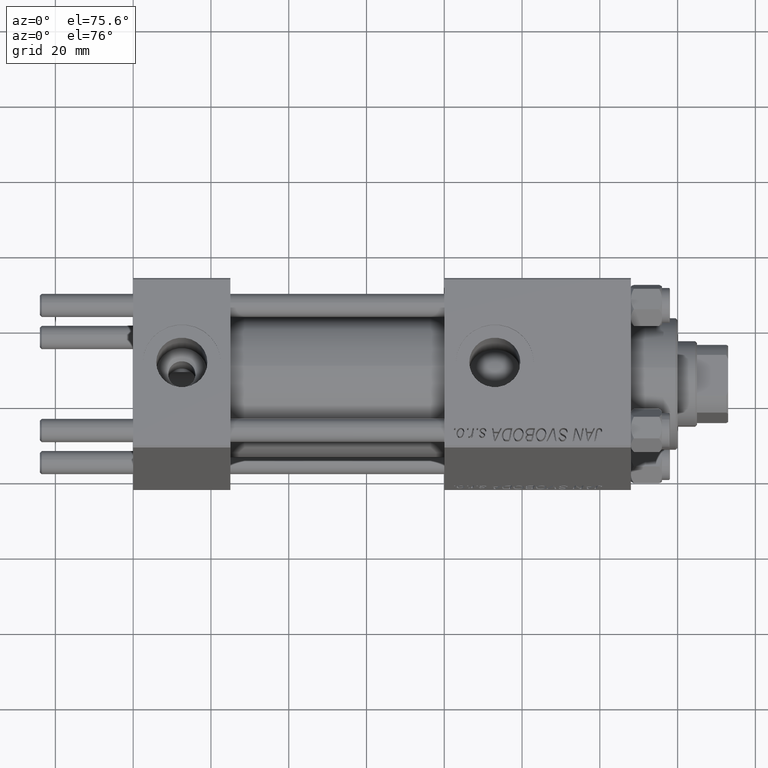
[diagram: clean part render]
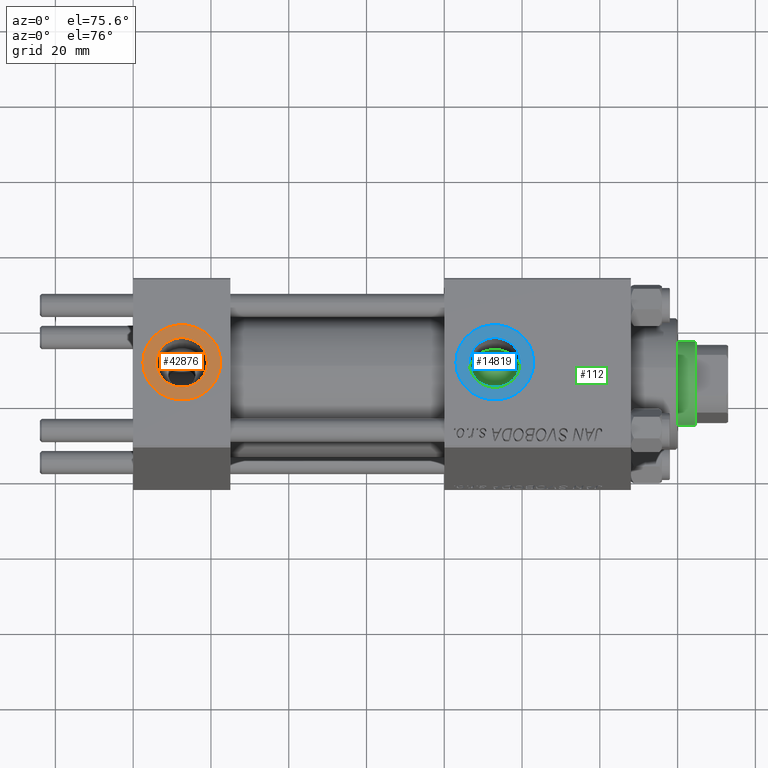
[diagram: same view with three faces highlighted in distinct colors, each labeled with its STEP entity id]
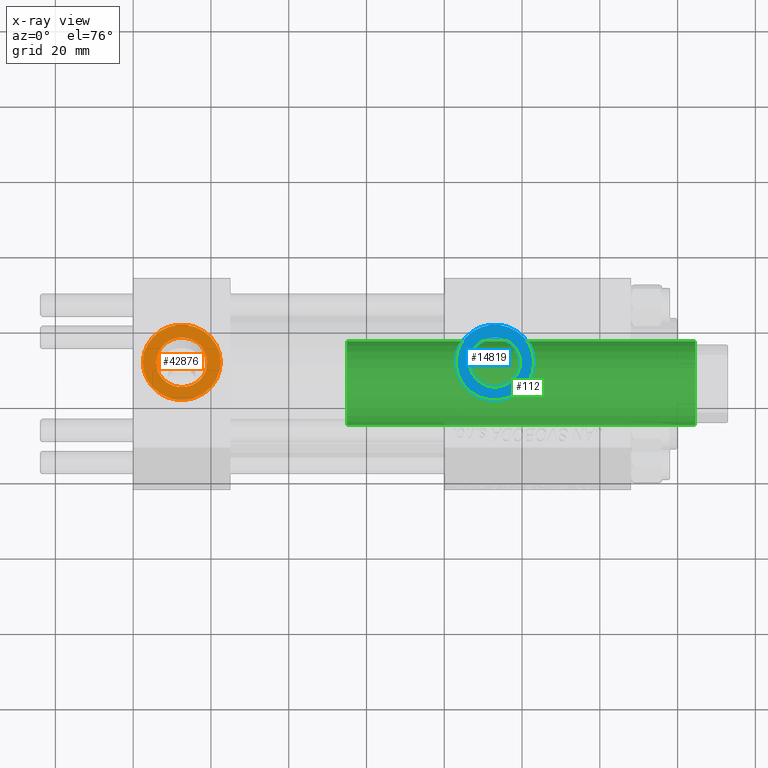
[diagram: x-ray of the same camera — body ghosted, the three highlighted faces saturated]
A machine part, auxiliary view with three faces highlighted in distinct colors.
The next image is the same camera in x-ray (body ghosted, the three faces saturated) — at least one of them is partly hidden behind the body in this view.
Their STEP definitions:

[orange] entity #42876 — the highlighted planar face has unit normal (0, 0, 1).
#6 = CARTESIAN_POINT ( 'NONE',  ( 12.50000000000000000, -1.734723475976807094E-15, 22.30000000000000071 ) ) ;
#756 = AXIS2_PLACEMENT_3D ( 'NONE', #31468, #47159, #1107 ) ;
#945 = CARTESIAN_POINT ( 'NONE',  ( 12.50000000000000000, -1.734723475976807094E-15, 22.30000000000000071 ) ) ;
#1107 = DIRECTION ( 'NONE',  ( 1.000000000000000000, 0.000000000000000000, 0.000000000000000000 ) ) ;
#5902 = AXIS2_PLACEMENT_3D ( 'NONE', #6, #31606, #35129 ) ;
#10517 = DIRECTION ( 'NONE',  ( 0.000000000000000000, 0.000000000000000000, 1.000000000000000000 ) ) ;
#10813 = CARTESIAN_POINT ( 'NONE',  ( 19.07999999999999829, -1.734723475976807094E-15, 22.30000000000000071 ) ) ;
#11396 = AXIS2_PLACEMENT_3D ( 'NONE', #28390, #19555, #34970 ) ;
#12382 = FACE_BOUND ( 'NONE', #37731, .T. ) ;
#13453 = AXIS2_PLACEMENT_3D ( 'NONE', #29994, #10517, #45920 ) ;
#14118 = EDGE_CURVE ( 'NONE', #38729, #44265, #41075, .T. ) ;
#17348 = CARTESIAN_POINT ( 'NONE',  ( 5.920000000000002593, -9.289058821378490386E-16, 22.30000000000000071 ) ) ;
#19555 = DIRECTION ( 'NONE',  ( 0.000000000000000000, 0.000000000000000000, 1.000000000000000000 ) ) ;
#20404 = DIRECTION ( 'NONE',  ( 0.000000000000000000, 0.000000000000000000, 1.000000000000000000 ) ) ;
#22559 = CIRCLE ( 'NONE', #756, 6.579999999999999183 ) ;
#22804 = CARTESIAN_POINT ( 'NONE',  ( 2.500000000000003997, -5.100766768294543310E-16, 22.30000000000000071 ) ) ;
#23763 = FACE_OUTER_BOUND ( 'NONE', #33677, .T. ) ;
#24011 = EDGE_CURVE ( 'NONE', #48334, #47076, #24755, .T. ) ;
#24755 = CIRCLE ( 'NONE', #13453, 6.579999999999999183 ) ;
#25915 = ORIENTED_EDGE ( 'NONE', *, *, #24011, .F. ) ;
#28336 = CARTESIAN_POINT ( 'NONE',  ( 22.50000000000000000, -1.734723475976807094E-15, 22.30000000000000071 ) ) ;
#28390 = CARTESIAN_POINT ( 'NONE',  ( 12.50000000000000000, -1.734723475976807094E-15, 22.30000000000000071 ) ) ;
#29994 = CARTESIAN_POINT ( 'NONE',  ( 12.50000000000000000, -1.734723475976807094E-15, 22.30000000000000071 ) ) ;
#30581 = EDGE_CURVE ( 'NONE', #47076, #48334, #22559, .T. ) ;
#31468 = CARTESIAN_POINT ( 'NONE',  ( 12.50000000000000000, -1.734723475976807094E-15, 22.30000000000000071 ) ) ;
#31606 = DIRECTION ( 'NONE',  ( 0.000000000000000000, 0.000000000000000000, 1.000000000000000000 ) ) ;
#33677 = EDGE_LOOP ( 'NONE', ( #48581, #39134 ) ) ;
#34970 = DIRECTION ( 'NONE',  ( 1.000000000000000000, 0.000000000000000000, 0.000000000000000000 ) ) ;
#35129 = DIRECTION ( 'NONE',  ( 1.000000000000000000, 0.000000000000000000, -0.000000000000000000 ) ) ;
#37018 = AXIS2_PLACEMENT_3D ( 'NONE', #945, #20404, #43450 ) ;
#37731 = EDGE_LOOP ( 'NONE', ( #49269, #25915 ) ) ;
#38269 = EDGE_CURVE ( 'NONE', #44265, #38729, #40456, .T. ) ;
#38729 = VERTEX_POINT ( 'NONE', #28336 ) ;
#39134 = ORIENTED_EDGE ( 'NONE', *, *, #38269, .T. ) ;
#40456 = CIRCLE ( 'NONE', #11396, 9.999999999999998224 ) ;
#41075 = CIRCLE ( 'NONE', #37018, 9.999999999999998224 ) ;
#42756 = PLANE ( 'NONE',  #5902 ) ;
#42876 = ADVANCED_FACE ( 'NONE', ( #12382, #23763 ), #42756, .T. ) ;
#43450 = DIRECTION ( 'NONE',  ( 1.000000000000000000, 0.000000000000000000, 0.000000000000000000 ) ) ;
#44265 = VERTEX_POINT ( 'NONE', #22804 ) ;
#45920 = DIRECTION ( 'NONE',  ( 1.000000000000000000, 0.000000000000000000, 0.000000000000000000 ) ) ;
#47076 = VERTEX_POINT ( 'NONE', #10813 ) ;
#47159 = DIRECTION ( 'NONE',  ( 0.000000000000000000, 0.000000000000000000, 1.000000000000000000 ) ) ;
#48334 = VERTEX_POINT ( 'NONE', #17348 ) ;
#48581 = ORIENTED_EDGE ( 'NONE', *, *, #14118, .T. ) ;
#49269 = ORIENTED_EDGE ( 'NONE', *, *, #30581, .F. ) ;

[blue] entity #14819 — the highlighted planar face has unit normal (0, 0, 1).
#2555 = DIRECTION ( 'NONE',  ( -0.000000000000000000, -0.000000000000000000, -1.000000000000000000 ) ) ;
#3221 = DIRECTION ( 'NONE',  ( 1.000000000000000000, 0.000000000000000000, 0.000000000000000000 ) ) ;
#3305 = DIRECTION ( 'NONE',  ( 1.000000000000000000, 0.000000000000000000, 0.000000000000000000 ) ) ;
#5399 = AXIS2_PLACEMENT_3D ( 'NONE', #46190, #10537, #11528 ) ;
#7014 = DIRECTION ( 'NONE',  ( -0.000000000000000000, -0.000000000000000000, -1.000000000000000000 ) ) ;
#7340 = CARTESIAN_POINT ( 'NONE',  ( 93.00000000000000000, -5.204170427930420494E-15, 22.29999999999999716 ) ) ;
#8614 = VERTEX_POINT ( 'NONE', #11581 ) ;
#9119 = ORIENTED_EDGE ( 'NONE', *, *, #35247, .T. ) ;
#9754 = DIRECTION ( 'NONE',  ( 1.000000000000000000, 0.000000000000000000, 0.000000000000000000 ) ) ;
#9797 = EDGE_CURVE ( 'NONE', #36218, #49011, #34452, .T. ) ;
#10343 = FACE_OUTER_BOUND ( 'NONE', #37041, .T. ) ;
#10537 = DIRECTION ( 'NONE',  ( 0.000000000000000000, 0.000000000000000000, 1.000000000000000000 ) ) ;
#11528 = DIRECTION ( 'NONE',  ( 1.000000000000000000, 0.000000000000000000, 0.000000000000000000 ) ) ;
#11581 = CARTESIAN_POINT ( 'NONE',  ( 86.42000000000000171, -5.204170427930420494E-15, 22.29999999999999716 ) ) ;
#13827 = ORIENTED_EDGE ( 'NONE', *, *, #49977, .T. ) ;
#14819 = ADVANCED_FACE ( 'NONE', ( #21474, #10343 ), #40949, .T. ) ;
#19130 = AXIS2_PLACEMENT_3D ( 'NONE', #37857, #7014, #3221 ) ;
#19721 = AXIS2_PLACEMENT_3D ( 'NONE', #7340, #2555, #3305 ) ;
#19922 = CIRCLE ( 'NONE', #19130, 6.580000000000002736 ) ;
#21474 = FACE_BOUND ( 'NONE', #45878, .T. ) ;
#22396 = CARTESIAN_POINT ( 'NONE',  ( 99.57999999999999829, -4.398352834091461452E-15, 22.29999999999999716 ) ) ;
#23138 = EDGE_CURVE ( 'NONE', #42670, #8614, #19922, .T. ) ;
#24017 = CARTESIAN_POINT ( 'NONE',  ( 82.99999999999998579, -3.979523628783065857E-15, 22.29999999999999716 ) ) ;
#24764 = DIRECTION ( 'NONE',  ( 0.000000000000000000, 0.000000000000000000, 1.000000000000000000 ) ) ;
#25770 = DIRECTION ( 'NONE',  ( 1.000000000000000000, 0.000000000000000000, -0.000000000000000000 ) ) ;
#26595 = AXIS2_PLACEMENT_3D ( 'NONE', #48557, #24764, #25770 ) ;
#26984 = CIRCLE ( 'NONE', #19721, 6.580000000000002736 ) ;
#28258 = AXIS2_PLACEMENT_3D ( 'NONE', #48215, #44428, #9754 ) ;
#34452 = CIRCLE ( 'NONE', #5399, 10.00000000000000888 ) ;
#35247 = EDGE_CURVE ( 'NONE', #49011, #36218, #37130, .T. ) ;
#36218 = VERTEX_POINT ( 'NONE', #39563 ) ;
#37041 = EDGE_LOOP ( 'NONE', ( #44220, #9119 ) ) ;
#37130 = CIRCLE ( 'NONE', #28258, 10.00000000000000888 ) ;
#37857 = CARTESIAN_POINT ( 'NONE',  ( 93.00000000000000000, -5.204170427930420494E-15, 22.29999999999999716 ) ) ;
#39563 = CARTESIAN_POINT ( 'NONE',  ( 103.0000000000000142, -5.204170427930420494E-15, 22.29999999999999716 ) ) ;
#40949 = PLANE ( 'NONE',  #26595 ) ;
#42670 = VERTEX_POINT ( 'NONE', #22396 ) ;
#44220 = ORIENTED_EDGE ( 'NONE', *, *, #9797, .T. ) ;
#44428 = DIRECTION ( 'NONE',  ( 0.000000000000000000, 0.000000000000000000, 1.000000000000000000 ) ) ;
#45878 = EDGE_LOOP ( 'NONE', ( #13827, #48764 ) ) ;
#46190 = CARTESIAN_POINT ( 'NONE',  ( 93.00000000000000000, -5.204170427930420494E-15, 22.29999999999999716 ) ) ;
#48215 = CARTESIAN_POINT ( 'NONE',  ( 93.00000000000000000, -5.204170427930420494E-15, 22.29999999999999716 ) ) ;
#48557 = CARTESIAN_POINT ( 'NONE',  ( 93.00000000000000000, -5.204170427930420494E-15, 22.29999999999999716 ) ) ;
#48764 = ORIENTED_EDGE ( 'NONE', *, *, #23138, .T. ) ;
#49011 = VERTEX_POINT ( 'NONE', #24017 ) ;
#49977 = EDGE_CURVE ( 'NONE', #8614, #42670, #26984, .T. ) ;

[green] entity #112 — the highlighted cylindrical surface (partial cylindrical patch) has radius 11 mm, axis along (-1, 0, 0).
#112 = ADVANCED_FACE ( 'NONE', ( #27763 ), #43205, .T. ) ;
#653 = EDGE_CURVE ( 'NONE', #10863, #18332, #44019, .T. ) ;
#1902 = CARTESIAN_POINT ( 'NONE',  ( -11.00000000000000000, 0.000000000000000000, 120.0000000000000000 ) ) ;
#1983 = AXIS2_PLACEMENT_3D ( 'NONE', #23348, #34964, #18566 ) ;
#2087 = EDGE_CURVE ( 'NONE', #21125, #10863, #39846, .T. ) ;
#3423 = EDGE_LOOP ( 'NONE', ( #17446, #46809, #30882, #28895 ) ) ;
#3509 = DIRECTION ( 'NONE',  ( -1.000000000000000000, 0.000000000000000000, 0.000000000000000000 ) ) ;
#3616 = AXIS2_PLACEMENT_3D ( 'NONE', #22732, #38147, #3509 ) ;
#5037 = DIRECTION ( 'NONE',  ( -0.000000000000000000, -0.000000000000000000, -1.000000000000000000 ) ) ;
#5880 = VERTEX_POINT ( 'NONE', #47664 ) ;
#10863 = VERTEX_POINT ( 'NONE', #42674 ) ;
#16665 = CARTESIAN_POINT ( 'NONE',  ( 11.00000000000000000, 1.347111479062088207E-15, 120.0000000000000000 ) ) ;
#17446 = ORIENTED_EDGE ( 'NONE', *, *, #31276, .F. ) ;
#18332 = VERTEX_POINT ( 'NONE', #39566 ) ;
#18566 = DIRECTION ( 'NONE',  ( 1.000000000000000000, 0.000000000000000000, 0.000000000000000000 ) ) ;
#18803 = CARTESIAN_POINT ( 'NONE',  ( 0.000000000000000000, 0.000000000000000000, 119.5000000000000711 ) ) ;
#21125 = VERTEX_POINT ( 'NONE', #39687 ) ;
#22732 = CARTESIAN_POINT ( 'NONE',  ( 0.000000000000000000, 0.000000000000000000, 120.0000000000000000 ) ) ;
#23348 = CARTESIAN_POINT ( 'NONE',  ( 0.000000000000000000, 0.000000000000000000, 30.00000000000000000 ) ) ;
#26880 = EDGE_CURVE ( 'NONE', #5880, #21125, #29760, .T. ) ;
#27135 = DIRECTION ( 'NONE',  ( 1.000000000000000000, 0.000000000000000000, 0.000000000000000000 ) ) ;
#27763 = FACE_OUTER_BOUND ( 'NONE', #3423, .T. ) ;
#28549 = LINE ( 'NONE', #16665, #34703 ) ;
#28895 = ORIENTED_EDGE ( 'NONE', *, *, #653, .T. ) ;
#29760 = CIRCLE ( 'NONE', #43482, 11.00000000000000000 ) ;
#30186 = DIRECTION ( 'NONE',  ( 0.000000000000000000, 0.000000000000000000, -1.000000000000000000 ) ) ;
#30882 = ORIENTED_EDGE ( 'NONE', *, *, #2087, .T. ) ;
#31276 = EDGE_CURVE ( 'NONE', #5880, #18332, #28549, .T. ) ;
#32740 = DIRECTION ( 'NONE',  ( -0.000000000000000000, -0.000000000000000000, -1.000000000000000000 ) ) ;
#34703 = VECTOR ( 'NONE', #5037, 1000.000000000000000 ) ;
#34964 = DIRECTION ( 'NONE',  ( 0.000000000000000000, 0.000000000000000000, 1.000000000000000000 ) ) ;
#35179 = VECTOR ( 'NONE', #32740, 1000.000000000000000 ) ;
#38147 = DIRECTION ( 'NONE',  ( -0.000000000000000000, -0.000000000000000000, -1.000000000000000000 ) ) ;
#39566 = CARTESIAN_POINT ( 'NONE',  ( 11.00000000000000000, 1.347111479062088207E-15, 30.00000000000000000 ) ) ;
#39687 = CARTESIAN_POINT ( 'NONE',  ( -11.00000000000000000, 0.000000000000000000, 119.5000000000000711 ) ) ;
#39846 = LINE ( 'NONE', #1902, #35179 ) ;
#42674 = CARTESIAN_POINT ( 'NONE',  ( -11.00000000000000000, 0.000000000000000000, 30.00000000000000000 ) ) ;
#43205 = CYLINDRICAL_SURFACE ( 'NONE', #3616, 11.00000000000000000 ) ;
#43482 = AXIS2_PLACEMENT_3D ( 'NONE', #18803, #30186, #27135 ) ;
#44019 = CIRCLE ( 'NONE', #1983, 11.00000000000000000 ) ;
#46809 = ORIENTED_EDGE ( 'NONE', *, *, #26880, .T. ) ;
#47664 = CARTESIAN_POINT ( 'NONE',  ( 11.00000000000000000, 1.347111479062088207E-15, 119.5000000000000711 ) ) ;